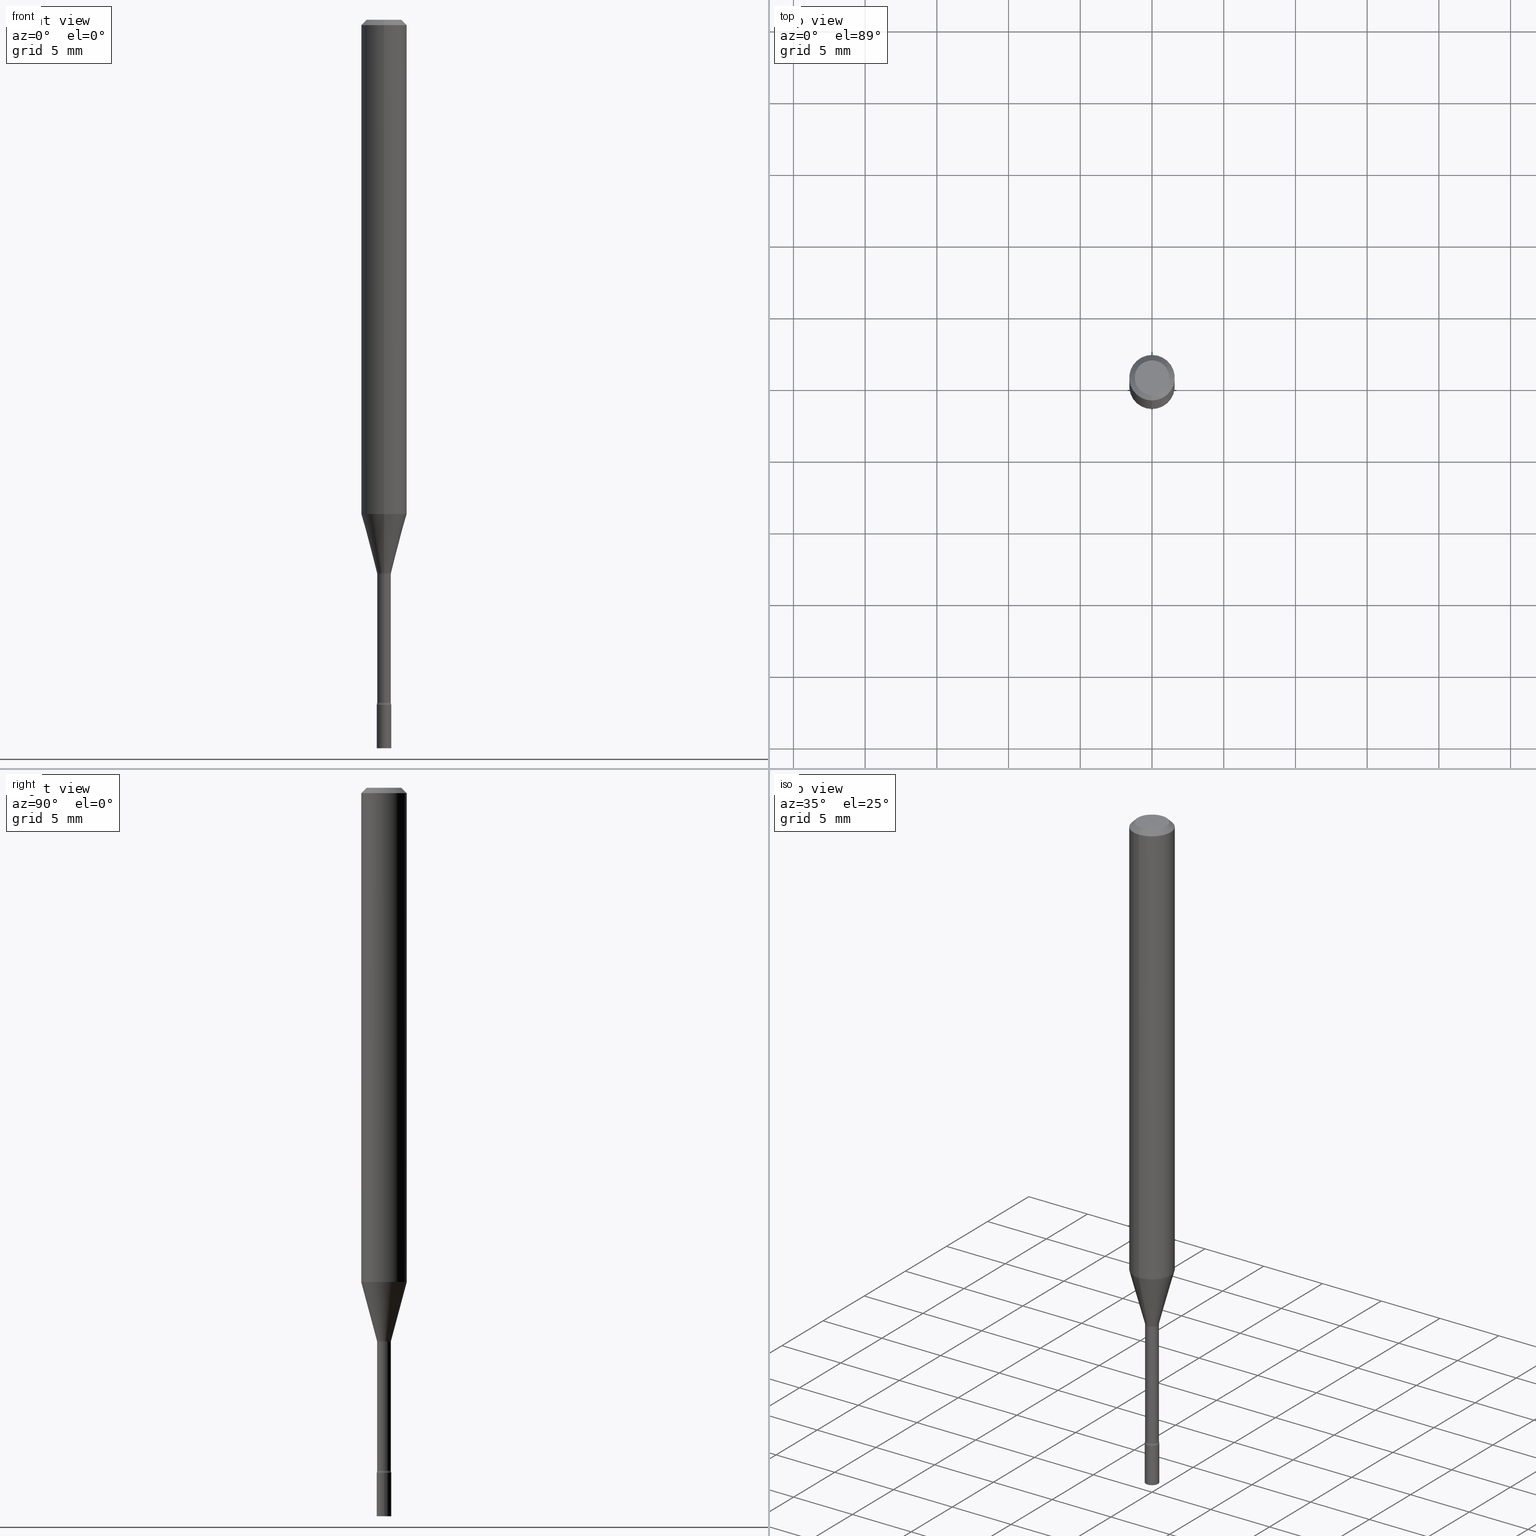
[diagram: canonical four-view strip — front | top / right | iso, engineering-drawing reading convention]
A machine part, canonical four-view strip (front | top / right | iso — engineering-drawing reading convention). The complete STEP part file that produces these views, byte-faithful:
ISO-10303-21;
HEADER;
FILE_DESCRIPTION (( 'STEP AP203' ),
    '1' );
FILE_NAME ('03434.STEP',
    '2024-03-08T21:21:38',
    ( '' ),
    ( '' ),
    'SwSTEP 2.0',
    'SolidWorks 2023',
    '' );
FILE_SCHEMA (( 'CONFIG_CONTROL_DESIGN' ));
ENDSEC;

DATA;
#1 = FACE_OUTER_BOUND ( 'NONE', #109, .T. ) ;
#2 = DIRECTION ( 'NONE',  ( 1.000000000000000000, -6.982962677686284065E-15, 0.000000000000000000 ) ) ;
#3 = ORIENTED_EDGE ( 'NONE', *, *, #150, .T. ) ;
#4 = CARTESIAN_POINT ( 'NONE',  ( -1.348487785899112650E-16, -0.01931111260566928736, -1.518092501787273063 ) ) ;
#5 = CIRCLE ( 'NONE', #206, 0.02000000000000000042 ) ;
#6 = ORIENTED_EDGE ( 'NONE', *, *, #210, .T. ) ;
#7 = AXIS2_PLACEMENT_3D ( 'NONE', #130, #453, #504 ) ;
#8 = EDGE_CURVE ( 'NONE', #244, #404, #360, .T. ) ;
#9 = CARTESIAN_POINT ( 'NONE',  ( 4.890937612370273194E-29, -6.982962677686291165E-15, -2.000000000000000000 ) ) ;
#10 = DIRECTION ( 'NONE',  ( 1.000000000000000000, -6.982962677686265922E-15, 4.876176775795935793E-29 ) ) ;
#11 = PERSON_AND_ORGANIZATION ( #165, #461 ) ;
#12 = CARTESIAN_POINT ( 'NONE',  ( 3.316907271900976096E-16, 0.04749999999999999362, -1.803014101044093239E-16 ) ) ;
#13 = LOCAL_TIME ( 16, 21, 38.00000000000000000, #344 ) ;
#14 = CLOSED_SHELL ( 'NONE', ( #73, #433, #367, #332, #350, #88, #279, #465, #302, #191, #268, #354, #55, #96 ) ) ;
#15 = CIRCLE ( 'NONE', #299, 0.02000000000000000042 ) ;
#16 = CARTESIAN_POINT ( 'NONE',  ( 4.583104993811144410E-29, -6.543459282481236710E-15, -1.874121224617320225 ) ) ;
#17 = PRODUCT_DEFINITION ( 'UNKNOWN', '', #418, #23 ) ;
#18 = APPROVAL_ROLE ( '' ) ;
#19 = DIRECTION ( 'NONE',  ( 1.000000000000000000, -6.982962677686265922E-15, 4.876176775795935793E-29 ) ) ;
#20 = ORIENTED_EDGE ( 'NONE', *, *, #113, .F. ) ;
#21 =( NAMED_UNIT ( * ) PLANE_ANGLE_UNIT ( ) SI_UNIT ( $, .RADIAN. ) );
#22 = DIRECTION ( 'NONE',  ( -6.982962677686265922E-15, -1.000000000000000000, 3.491443067071583478E-15 ) ) ;
#23 = DESIGN_CONTEXT ( 'detailed design', #355, 'design' ) ;
#24 = CYLINDRICAL_SURFACE ( 'NONE', #506, 0.02000000000000000042 ) ;
#25 = ADVANCED_FACE ( 'NONE', ( #463 ), #24, .T. ) ;
#26 = VECTOR ( 'NONE', #489, 39.37007874015748143 ) ;
#27 = CIRCLE ( 'NONE', #381, 0.02000000000000000042 ) ;
#28 = ORIENTED_EDGE ( 'NONE', *, *, #459, .T. ) ;
#29 = ORIENTED_EDGE ( 'NONE', *, *, #63, .T. ) ;
#30 = ORIENTED_EDGE ( 'NONE', *, *, #63, .F. ) ;
#31 = FACE_OUTER_BOUND ( 'NONE', #235, .T. ) ;
#32 = EDGE_LOOP ( 'NONE', ( #406, #202, #127, #42 ) ) ;
#33 = CC_DESIGN_PERSON_AND_ORGANIZATION_ASSIGNMENT ( #424, #434, ( #49 ) ) ;
#34 = ORIENTED_EDGE ( 'NONE', *, *, #472, .T. ) ;
#35 = AXIS2_PLACEMENT_3D ( 'NONE', #414, #499, #452 ) ;
#36 = AXIS2_PLACEMENT_3D ( 'NONE', #93, #227, #19 ) ;
#37 = PERSON_AND_ORGANIZATION_ROLE ( 'design_supplier' ) ;
#38 = ADVANCED_FACE ( 'NONE', ( #290 ), #44, .T. ) ;
#39 = EDGE_LOOP ( 'NONE', ( #125, #107, #265, #30 ) ) ;
#40 = CARTESIAN_POINT ( 'NONE',  ( 3.840629472727447874E-16, 0.04749999999999999362, -1.947592745229184119E-16 ) ) ;
#41 = EDGE_CURVE ( 'NONE', #435, #140, #207, .T. ) ;
#42 = ORIENTED_EDGE ( 'NONE', *, *, #285, .F. ) ;
#43 = FACE_OUTER_BOUND ( 'NONE', #309, .T. ) ;
#44 = PLANE ( 'NONE',  #399 ) ;
#45 = ORIENTED_EDGE ( 'NONE', *, *, #8, .F. ) ;
#46 = CARTESIAN_POINT ( 'NONE',  ( 4.440892098500625669E-16, 0.06250000000000000000, -2.182151916919739674E-16 ) ) ;
#47 = CARTESIAN_POINT ( 'NONE',  ( 4.583104993811144410E-29, -6.543459282481236710E-15, -1.874121224617320225 ) ) ;
#48 = VECTOR ( 'NONE', #334, 39.37007874015748143 ) ;
#49 = SECURITY_CLASSIFICATION ( '', '', #394 ) ;
#50 = DIRECTION ( 'NONE',  ( 0.000000000000000000, 0.000000000000000000, 1.000000000000000000 ) ) ;
#51 = DIRECTION ( 'NONE',  ( -2.445495531220379276E-29, 3.491443067071583478E-15, 1.000000000000000000 ) ) ;
#52 = DIRECTION ( 'NONE',  ( 1.000000000000000000, -6.982962677686284065E-15, 0.000000000000000000 ) ) ;
#53 = DIRECTION ( 'NONE',  ( 1.000000000000000000, 0.000000000000000000, 0.000000000000000000 ) ) ;
#54 = CARTESIAN_POINT ( 'NONE',  ( -4.287811248607203282E-16, -0.06250000000000005551, -0.01499999999999981209 ) ) ;
#55 = ADVANCED_FACE ( 'NONE', ( #443 ), #212, .T. ) ;
#56 = DIRECTION ( 'NONE',  ( 6.982962677686265922E-15, 1.000000000000000000, -3.491443067071583478E-15 ) ) ;
#57 = TOROIDAL_SURFACE ( 'NONE', #371, 0.03379999999999999671, 0.01500000000000001853 ) ;
#58 = CONICAL_SURFACE ( 'NONE', #84, 0.06250000000000000000, 0.7853981633974483900 ) ;
#59 = DIRECTION ( 'NONE',  ( -6.982962677686265922E-15, -1.000000000000000000, 3.491443067071583478E-15 ) ) ;
#60 = VERTEX_POINT ( 'NONE', #245 ) ;
#61 = CARTESIAN_POINT ( 'NONE',  ( -0.02000000000000000042, -6.631365250203681896E-15, -2.000000000000000000 ) ) ;
#62 = FACE_OUTER_BOUND ( 'NONE', #32, .T. ) ;
#63 = EDGE_CURVE ( 'NONE', #244, #386, #90, .T. ) ;
#64 = ORIENTED_EDGE ( 'NONE', *, *, #437, .F. ) ;
#65 = ORIENTED_EDGE ( 'NONE', *, *, #396, .T. ) ;
#66 = AXIS2_PLACEMENT_3D ( 'NONE', #449, #515, #10 ) ;
#67 = EDGE_LOOP ( 'NONE', ( #292, #64 ) ) ;
#68 = SHAPE_DEFINITION_REPRESENTATION ( #271, #228 ) ;
#69 = PRODUCT_RELATED_PRODUCT_CATEGORY ( 'detail', '', ( #335 ) ) ;
#70 = APPROVAL_STATUS ( 'not_yet_approved' ) ;
#71 = DIRECTION ( 'NONE',  ( -2.445495531220379276E-29, 3.491443067071583478E-15, 1.000000000000000000 ) ) ;
#72 = ORIENTED_EDGE ( 'NONE', *, *, #201, .T. ) ;
#73 = ADVANCED_FACE ( 'NONE', ( #364 ), #94, .F. ) ;
#74 = DATE_AND_TIME ( #270, #13 ) ;
#75 = UNCERTAINTY_MEASURE_WITH_UNIT (LENGTH_MEASURE( 1.000000000000000082E-05 ), #416, 'distance_accuracy_value', 'NONE');
#76 = ORIENTED_EDGE ( 'NONE', *, *, #258, .F. ) ;
#77 = EDGE_CURVE ( 'NONE', #440, #177, #5, .T. ) ;
#78 = DIRECTION ( 'NONE',  ( -2.445495531220379276E-29, 3.491443067071583478E-15, 1.000000000000000000 ) ) ;
#79 = AXIS2_PLACEMENT_3D ( 'NONE', #47, #128, #280 ) ;
#80 = DIRECTION ( 'NONE',  ( -2.445468806185136597E-29, 3.491481338843145583E-15, 1.000000000000000000 ) ) ;
#81 = DIRECTION ( 'NONE',  ( 1.839019923739597160E-15, 0.2588190451025245142, 0.9659258262890673130 ) ) ;
#82 = AXIS2_PLACEMENT_3D ( 'NONE', #491, #51, #366 ) ;
#84 = AXIS2_PLACEMENT_3D ( 'NONE', #242, #483, #87 ) ;
#83 = DIRECTION ( 'NONE',  ( -2.445495531220379276E-29, 3.491443067071583478E-15, 1.000000000000000000 ) ) ;
#85 = DIRECTION ( 'NONE',  ( -6.982962677686267499E-15, -1.000000000000000000, 0.000000000000000000 ) ) ;
#86 = CARTESIAN_POINT ( 'NONE',  ( 7.071328565290826587E-46, -1.009576209773290843E-31, -2.891572883701820681E-17 ) ) ;
#87 = DIRECTION ( 'NONE',  ( 6.982962677686265922E-15, 1.000000000000000000, -3.483106191921935554E-15 ) ) ;
#88 = ADVANCED_FACE ( 'NONE', ( #205 ), #308, .T. ) ;
#89 = CARTESIAN_POINT ( 'NONE',  ( 4.364351673553919652E-16, 0.06249999999999995143, -0.01500000000000024751 ) ) ;
#90 = LINE ( 'NONE', #4, #26 ) ;
#91 =( LENGTH_UNIT ( ) NAMED_UNIT ( * ) SI_UNIT ( $, .METRE. ) );
#92 = CARTESIAN_POINT ( 'NONE',  ( 1.396592535537712903E-16, 0.01999999999999343622, -1.879999999999999893 ) ) ;
#93 = CARTESIAN_POINT ( 'NONE',  ( 0.000000000000000000, 0.000000000000000000, 0.000000000000000000 ) ) ;
#94 = TOROIDAL_SURFACE ( 'NONE', #168, 0.03379999999999999671, 0.01500000000000001853 ) ;
#95 = AXIS2_PLACEMENT_3D ( 'NONE', #293, #337, #59 ) ;
#96 = ADVANCED_FACE ( 'NONE', ( #368 ), #57, .F. ) ;
#97 = CARTESIAN_POINT ( 'NONE',  ( 1.335820343229447174E-16, 0.01879999999999468555, -1.521974787463810985 ) ) ;
#98 = ORIENTED_EDGE ( 'NONE', *, *, #223, .F. ) ;
#99 = ORIENTED_EDGE ( 'NONE', *, *, #488, .T. ) ;
#100 = DATE_AND_TIME ( #419, #352 ) ;
#101 = ORIENTED_EDGE ( 'NONE', *, *, #113, .T. ) ;
#102 = EDGE_LOOP ( 'NONE', ( #281, #204 ) ) ;
#103 = CALENDAR_DATE ( 2024, 8, 3 ) ;
#104 = DIRECTION ( 'NONE',  ( 7.105427357601000281E-15, 1.000000000000000000, 0.000000000000000000 ) ) ;
#105 = AXIS2_PLACEMENT_3D ( 'NONE', #505, #348, #135 ) ;
#106 = APPROVAL_ROLE ( '' ) ;
#107 = ORIENTED_EDGE ( 'NONE', *, *, #223, .T. ) ;
#108 = EDGE_CURVE ( 'NONE', #440, #140, #169, .T. ) ;
#109 = EDGE_LOOP ( 'NONE', ( #193, #187, #423, #119 ) ) ;
#110 = AXIS2_PLACEMENT_3D ( 'NONE', #446, #247, #213 ) ;
#111 = CIRCLE ( 'NONE', #289, 0.06250000000000000000 ) ;
#112 = DIRECTION ( 'NONE',  ( -6.982962677686266711E-15, -1.000000000000000000, 0.000000000000000000 ) ) ;
#113 = EDGE_CURVE ( 'NONE', #346, #356, #517, .T. ) ;
#114 = ORIENTED_EDGE ( 'NONE', *, *, #311, .T. ) ;
#115 = ORIENTED_EDGE ( 'NONE', *, *, #234, .T. ) ;
#116 = DIRECTION ( 'NONE',  ( -6.982962677686265922E-15, -1.000000000000000000, 3.483106191921935554E-15 ) ) ;
#117 = CIRCLE ( 'NONE', #189, 0.01500000000000001853 ) ;
#118 = CC_DESIGN_APPROVAL ( #442, ( #17 ) ) ;
#119 = ORIENTED_EDGE ( 'NONE', *, *, #396, .F. ) ;
#120 = CARTESIAN_POINT ( 'NONE',  ( 3.721941866543002798E-29, -5.313946568619659199E-15, -1.521974787463810985 ) ) ;
#121 = PLANE ( 'NONE',  #66 ) ;
#122 = APPLICATION_CONTEXT ( 'configuration controlled 3d designs of mechanical parts and assemblies' ) ;
#123 = CARTESIAN_POINT ( 'NONE',  ( 1.372137078140355306E-16, 0.01931111260565868473, -1.518092501787273063 ) ) ;
#124 = CARTESIAN_POINT ( 'NONE',  ( -4.364351673553585373E-16, -0.06250000000000476008, -1.356909379709239971 ) ) ;
#125 = ORIENTED_EDGE ( 'NONE', *, *, #8, .T. ) ;
#126 = CARTESIAN_POINT ( 'NONE',  ( 0.02000000000000000042, -1.396592535537253145E-16, 9.752353551591871936E-31 ) ) ;
#127 = ORIENTED_EDGE ( 'NONE', *, *, #144, .T. ) ;
#128 = DIRECTION ( 'NONE',  ( -2.445495531220379276E-29, 3.491443067071583478E-15, 1.000000000000000000 ) ) ;
#129 = CC_DESIGN_PERSON_AND_ORGANIZATION_ASSIGNMENT ( #11, #457, ( #335 ) ) ;
#131 = CIRCLE ( 'NONE', #7, 0.01880000000000001809 ) ;
#130 = CARTESIAN_POINT ( 'NONE',  ( 4.583155079766921623E-29, -6.543387556541848814E-15, -1.874121224617320225 ) ) ;
#132 = CARTESIAN_POINT ( 'NONE',  ( 1.335820343228988648E-16, 0.01880000000000000768, -6.563912966094579717E-17 ) ) ;
#133 = FACE_OUTER_BOUND ( 'NONE', #154, .T. ) ;
#134 = MECHANICAL_CONTEXT ( 'NONE', #122, 'mechanical' ) ;
#135 = DIRECTION ( 'NONE',  ( -6.982962677686265922E-15, -1.000000000000000000, 0.000000000000000000 ) ) ;
#136 = ORIENTED_EDGE ( 'NONE', *, *, #389, .T. ) ;
#137 = LINE ( 'NONE', #456, #410 ) ;
#138 = CC_DESIGN_APPROVAL ( #155, ( #418 ) ) ;
#139 = DATE_AND_TIME ( #103, #159 ) ;
#140 = VERTEX_POINT ( 'NONE', #476 ) ;
#141 = CALENDAR_DATE ( 2024, 8, 3 ) ;
#142 = ORIENTED_EDGE ( 'NONE', *, *, #311, .F. ) ;
#143 = CARTESIAN_POINT ( 'NONE',  ( -4.364351673553912750E-16, -0.06250000000000005551, -0.01499999999999981209 ) ) ;
#144 = EDGE_CURVE ( 'NONE', #386, #429, #402, .T. ) ;
#145 = AXIS2_PLACEMENT_3D ( 'NONE', #183, #237, #353 ) ;
#146 = AXIS2_PLACEMENT_3D ( 'NONE', #408, #462, #500 ) ;
#147 = CARTESIAN_POINT ( 'NONE',  ( -2.360241385057502060E-16, -0.03380000000000657479, -1.874121224617320225 ) ) ;
#148 = PERSON_AND_ORGANIZATION_ROLE ( 'creator' ) ;
#149 = CC_DESIGN_DATE_AND_TIME_ASSIGNMENT ( #307, #184, ( #49 ) ) ;
#150 = EDGE_CURVE ( 'NONE', #195, #351, #232, .T. ) ;
#151 = CC_DESIGN_SECURITY_CLASSIFICATION ( #49, ( #418 ) ) ;
#152 = DIRECTION ( 'NONE',  ( -6.982962677686265922E-15, -1.000000000000000000, 3.491443067071583478E-15 ) ) ;
#153 = CLOSED_SHELL ( 'NONE', ( #25, #447, #520, #38 ) ) ;
#154 = EDGE_LOOP ( 'NONE', ( #101, #99 ) ) ;
#155 = APPROVAL ( #70, 'UNSPECIFIED' ) ;
#156 = EDGE_LOOP ( 'NONE', ( #323, #28, #136, #185 ) ) ;
#157 = CARTESIAN_POINT ( 'NONE',  ( 4.597531598694312647E-29, -6.563912966094576118E-15, -1.879999999999999893 ) ) ;
#158 = VECTOR ( 'NONE', #430, 39.37007874015748143 ) ;
#159 = LOCAL_TIME ( 16, 21, 38.00000000000000000, #267 ) ;
#160 = ORIENTED_EDGE ( 'NONE', *, *, #488, .F. ) ;
#161 = PLANE ( 'NONE',  #179 ) ;
#162 = FACE_OUTER_BOUND ( 'NONE', #188, .T. ) ;
#163 = DIRECTION ( 'NONE',  ( -2.445495531220379276E-29, 3.491443067071583478E-15, 1.000000000000000000 ) ) ;
#164 = EDGE_CURVE ( 'NONE', #140, #435, #283, .T. ) ;
#165 = PERSON ( 'UNSPECIFIED', 'UNSPECIFIED', 'UNSPECIFIED', ('UNSPECIFIED'), ('UNSPECIFIED'), ('UNSPECIFIED') ) ;
#166 = APPLICATION_PROTOCOL_DEFINITION ( 'international standard', 'config_control_design', 1994, #355 ) ;
#167 = CARTESIAN_POINT ( 'NONE',  ( -1.348487785899112650E-16, -0.01931111260566928736, -1.518092501787273063 ) ) ;
#168 = AXIS2_PLACEMENT_3D ( 'NONE', #253, #163, #405 ) ;
#169 = LINE ( 'NONE', #209, #158 ) ;
#170 = AXIS2_PLACEMENT_3D ( 'NONE', #466, #71, #475 ) ;
#171 = FACE_OUTER_BOUND ( 'NONE', #67, .T. ) ;
#172 = ORIENTED_EDGE ( 'NONE', *, *, #509, .T. ) ;
#173 = DIRECTION ( 'NONE',  ( -6.982962677686266711E-15, -1.000000000000000000, 3.491443067071583872E-15 ) ) ;
#174 = CARTESIAN_POINT ( 'NONE',  ( 1.378452907375054653E-16, 0.01879999999999347471, -1.874121224617320225 ) ) ;
#175 = LENGTH_MEASURE_WITH_UNIT ( LENGTH_MEASURE( 0.02539999999999999897 ), #91 );
#176 = EDGE_LOOP ( 'NONE', ( #286, #230 ) ) ;
#177 = VERTEX_POINT ( 'NONE', #192 ) ;
#178 = APPROVAL_STATUS ( 'not_yet_approved' ) ;
#179 = AXIS2_PLACEMENT_3D ( 'NONE', #12, #502, #56 ) ;
#180 = CARTESIAN_POINT ( 'NONE',  ( 0.000000000000000000, 0.000000000000000000, 0.000000000000000000 ) ) ;
#181 = EDGE_CURVE ( 'NONE', #429, #495, #314, .T. ) ;
#182 = DIRECTION ( 'NONE',  ( -6.982962677686265922E-15, -1.000000000000000000, 0.000000000000000000 ) ) ;
#183 = CARTESIAN_POINT ( 'NONE',  ( 7.071328565290826587E-46, -1.009576209773290843E-31, -2.891572883701820681E-17 ) ) ;
#184 = DATE_TIME_ROLE ( 'classification_date' ) ;
#185 = ORIENTED_EDGE ( 'NONE', *, *, #201, .F. ) ;
#186 = CC_DESIGN_PERSON_AND_ORGANIZATION_ASSIGNMENT ( #436, #37, ( #418 ) ) ;
#187 = ORIENTED_EDGE ( 'NONE', *, *, #403, .T. ) ;
#188 = EDGE_LOOP ( 'NONE', ( #426, #6, #266, #508 ) ) ;
#189 = AXIS2_PLACEMENT_3D ( 'NONE', #363, #221, #85 ) ;
#190 = AXIS2_PLACEMENT_3D ( 'NONE', #417, #420, #338 ) ;
#191 = ADVANCED_FACE ( 'NONE', ( #133 ), #161, .F. ) ;
#192 = CARTESIAN_POINT ( 'NONE',  ( 0.02000000000000000042, -7.122621931240016973E-15, -2.000000000000000000 ) ) ;
#193 = ORIENTED_EDGE ( 'NONE', *, *, #150, .F. ) ;
#194 = CARTESIAN_POINT ( 'NONE',  ( 0.000000000000000000, 0.000000000000000000, 0.000000000000000000 ) ) ;
#195 = VERTEX_POINT ( 'NONE', #174 ) ;
#196 = FACE_OUTER_BOUND ( 'NONE', #263, .T. ) ;
#197 = AXIS2_PLACEMENT_3D ( 'NONE', #9, #326, #370 ) ;
#198 = AXIS2_PLACEMENT_3D ( 'NONE', #86, #83, #173 ) ;
#199 = DIRECTION ( 'NONE',  ( -6.982962677686265922E-15, -1.000000000000000000, 0.000000000000000000 ) ) ;
#200 = CYLINDRICAL_SURFACE ( 'NONE', #310, 0.06250000000000000000 ) ;
#201 = EDGE_CURVE ( 'NONE', #244, #60, #117, .T. ) ;
#202 = ORIENTED_EDGE ( 'NONE', *, *, #248, .T. ) ;
#203 = DIRECTION ( 'NONE',  ( -2.445495531220379276E-29, 3.491443067071583478E-15, 1.000000000000000000 ) ) ;
#204 = ORIENTED_EDGE ( 'NONE', *, *, #164, .T. ) ;
#205 = FACE_OUTER_BOUND ( 'NONE', #39, .T. ) ;
#206 = AXIS2_PLACEMENT_3D ( 'NONE', #287, #80, #52 ) ;
#207 = CIRCLE ( 'NONE', #341, 0.02000000000000000042 ) ;
#208 = VECTOR ( 'NONE', #479, 39.37007874015748143 ) ;
#209 = CARTESIAN_POINT ( 'NONE',  ( -0.02000000000000000042, 1.421085471520200401E-16, -9.837870180509812545E-31 ) ) ;
#210 = EDGE_CURVE ( 'NONE', #401, #495, #407, .T. ) ;
#211 = CARTESIAN_POINT ( 'NONE',  ( 1.421085471520660899E-16, 0.01999999999999345357, -1.879999999999999893 ) ) ;
#212 = CYLINDRICAL_SURFACE ( 'NONE', #35, 0.01880000000000000768 ) ;
#213 = DIRECTION ( 'NONE',  ( -6.982962677686265922E-15, -1.000000000000000000, 3.483106191921935554E-15 ) ) ;
#214 = CARTESIAN_POINT ( 'NONE',  ( 3.712488429099941897E-29, -5.300333540538529346E-15, -1.518092501787273063 ) ) ;
#215 = PERSON_AND_ORGANIZATION ( #165, #461 ) ;
#216 = DIMENSIONAL_EXPONENTS ( 1.000000000000000000, 0.000000000000000000, 0.000000000000000000, 0.000000000000000000, 0.000000000000000000, 0.000000000000000000, 0.000000000000000000 ) ;
#217 = AXIS2_PLACEMENT_3D ( 'NONE', #478, #78, #199 ) ;
#219 = AXIS2_PLACEMENT_3D ( 'NONE', #16, #222, #378 ) ;
#218 = APPROVAL_STATUS ( 'not_yet_approved' ) ;
#220 = ORIENTED_EDGE ( 'NONE', *, *, #316, .T. ) ;
#221 = DIRECTION ( 'NONE',  ( -1.000000000000000000, 6.982962677686265922E-15, -4.883557194083112340E-29 ) ) ;
#222 = DIRECTION ( 'NONE',  ( -2.445495531220379276E-29, 3.491443067071583478E-15, 1.000000000000000000 ) ) ;
#223 = EDGE_CURVE ( 'NONE', #404, #401, #324, .T. ) ;
#224 = FACE_OUTER_BOUND ( 'NONE', #400, .T. ) ;
#225 = ORIENTED_EDGE ( 'NONE', *, *, #503, .F. ) ;
#226 = VERTEX_POINT ( 'NONE', #211 ) ;
#227 = DIRECTION ( 'NONE',  ( -2.445468806185136597E-29, 3.491481338843145583E-15, 1.000000000000000000 ) ) ;
#228 = ADVANCED_BREP_SHAPE_REPRESENTATION ( '03434', ( #458, #300, #498 ), #428 ) ;
#229 = ORIENTED_EDGE ( 'NONE', *, *, #248, .F. ) ;
#230 = ORIENTED_EDGE ( 'NONE', *, *, #77, .F. ) ;
#231 = PERSON_AND_ORGANIZATION ( #165, #461 ) ;
#232 = CIRCLE ( 'NONE', #217, 0.01880000000000001809 ) ;
#233 = TOROIDAL_SURFACE ( 'NONE', #219, 0.03380000000000003141, 0.01500000000000001679 ) ;
#234 = EDGE_CURVE ( 'NONE', #177, #440, #484, .T. ) ;
#235 = EDGE_LOOP ( 'NONE', ( #471, #382, #142, #374 ) ) ;
#236 = APPROVAL_ROLE ( '' ) ;
#237 = DIRECTION ( 'NONE',  ( -2.445495531220379276E-29, 3.491443067071583478E-15, 1.000000000000000000 ) ) ;
#238 = CALENDAR_DATE ( 2024, 8, 3 ) ;
#239 = CARTESIAN_POINT ( 'NONE',  ( -1.312796983404560969E-16, -0.01880000000000656146, -1.874121224617320225 ) ) ;
#240 = EDGE_CURVE ( 'NONE', #404, #244, #427, .T. ) ;
#241 = APPROVAL_PERSON_ORGANIZATION ( #215, #442, #18 ) ;
#242 = CARTESIAN_POINT ( 'NONE',  ( 3.668243296830576009E-31, -5.237164600607386088E-17, -0.01500000000000003067 ) ) ;
#243 = ORIENTED_EDGE ( 'NONE', *, *, #240, .T. ) ;
#244 = VERTEX_POINT ( 'NONE', #167 ) ;
#245 = CARTESIAN_POINT ( 'NONE',  ( -1.312796983404645772E-16, -0.01880000000000531246, -1.521974787463810985 ) ) ;
#246 = ORIENTED_EDGE ( 'NONE', *, *, #108, .T. ) ;
#247 = DIRECTION ( 'NONE',  ( -2.445495531220379276E-29, 3.491443067071583478E-15, 1.000000000000000000 ) ) ;
#248 = EDGE_CURVE ( 'NONE', #401, #386, #497, .T. ) ;
#249 = VECTOR ( 'NONE', #81, 39.37007874015748143 ) ;
#250 = CIRCLE ( 'NONE', #146, 0.01500000000000001853 ) ;
#251 = CYLINDRICAL_SURFACE ( 'NONE', #36, 0.02000000000000000042 ) ;
#252 = CARTESIAN_POINT ( 'NONE',  ( 3.318315824349964165E-29, -4.737571846430229129E-15, -1.356909379709240193 ) ) ;
#253 = CARTESIAN_POINT ( 'NONE',  ( 3.721941866543002798E-29, -5.313946568619659199E-15, -1.521974787463810985 ) ) ;
#254 = CARTESIAN_POINT ( 'NONE',  ( 3.721982541372836389E-29, -5.313888319948269223E-15, -1.521974787463810985 ) ) ;
#255 = DIRECTION ( 'NONE',  ( 4.937700262164548042E-15, 0.7071067811865451302, -0.7071067811865499042 ) ) ;
#256 = CC_DESIGN_DATE_AND_TIME_ASSIGNMENT ( #312, #305, ( #17 ) ) ;
#257 = CARTESIAN_POINT ( 'NONE',  ( 2.401634446869598892E-16, 0.03379999999999348803, -1.874121224617320225 ) ) ;
#258 = EDGE_CURVE ( 'NONE', #346, #495, #454, .T. ) ;
#259 = VECTOR ( 'NONE', #255, 39.37007874015748143 ) ;
#261 = CIRCLE ( 'NONE', #198, 0.04749999999999999362 ) ;
#260 = CARTESIAN_POINT ( 'NONE',  ( 4.440892098500960442E-16, 0.06249999999999995837, -0.01500000000000024751 ) ) ;
#262 = CARTESIAN_POINT ( 'NONE',  ( 3.668243296830576009E-31, -5.237164600607386088E-17, -0.01500000000000003067 ) ) ;
#263 = EDGE_LOOP ( 'NONE', ( #397, #343, #65, #220 ) ) ;
#264 = EDGE_LOOP ( 'NONE', ( #160, #480, #387, #76 ) ) ;
#265 = ORIENTED_EDGE ( 'NONE', *, *, #376, .F. ) ;
#266 = ORIENTED_EDGE ( 'NONE', *, *, #181, .F. ) ;
#267 = COORDINATED_UNIVERSAL_TIME_OFFSET ( 5, 0, .BEHIND. ) ;
#268 = ADVANCED_FACE ( 'NONE', ( #171 ), #294, .F. ) ;
#269 = DIRECTION ( 'NONE',  ( 1.000000000000000000, -6.982962677686265922E-15, 4.876176775795935793E-29 ) ) ;
#270 = CALENDAR_DATE ( 2024, 8, 3 ) ;
#271 = PRODUCT_DEFINITION_SHAPE ( 'NONE', 'NONE',  #17 ) ;
#272 = VERTEX_POINT ( 'NONE', #432 ) ;
#273 = APPROVAL_DATE_TIME ( #139, #155 ) ;
#274 = EDGE_LOOP ( 'NONE', ( #98, #243, #29, #229 ) ) ;
#275 = AXIS2_PLACEMENT_3D ( 'NONE', #482, #282, #393 ) ;
#276 = AXIS2_PLACEMENT_3D ( 'NONE', #254, #445, #486 ) ;
#277 = DIRECTION ( 'NONE',  ( -2.445495531220379276E-29, 3.491443067071583478E-15, 1.000000000000000000 ) ) ;
#278 = CONICAL_SURFACE ( 'NONE', #190, 0.06250000000000000000, 0.7853981633974483900 ) ;
#279 = ADVANCED_FACE ( 'NONE', ( #385 ), #342, .T. ) ;
#280 = DIRECTION ( 'NONE',  ( -6.982962677686265922E-15, -1.000000000000000000, 3.491443067071583478E-15 ) ) ;
#281 = ORIENTED_EDGE ( 'NONE', *, *, #41, .T. ) ;
#282 = DIRECTION ( 'NONE',  ( -2.445468806185136597E-29, 3.491481338843145583E-15, 1.000000000000000000 ) ) ;
#283 = CIRCLE ( 'NONE', #275, 0.02000000000000000042 ) ;
#284 = DIRECTION ( 'NONE',  ( 2.438088387897960049E-29, -3.491481338843145188E-15, -1.000000000000000000 ) ) ;
#285 = EDGE_CURVE ( 'NONE', #495, #429, #391, .T. ) ;
#286 = ORIENTED_EDGE ( 'NONE', *, *, #234, .F. ) ;
#287 = CARTESIAN_POINT ( 'NONE',  ( 4.890937612370273194E-29, -6.982962677686291165E-15, -2.000000000000000000 ) ) ;
#288 = CARTESIAN_POINT ( 'NONE',  ( 0.000000000000000000, 0.000000000000000000, 0.000000000000000000 ) ) ;
#289 = AXIS2_PLACEMENT_3D ( 'NONE', #252, #203, #321 ) ;
#290 = FACE_OUTER_BOUND ( 'NONE', #176, .T. ) ;
#291 = DIRECTION ( 'NONE',  ( -6.982962677686265922E-15, -1.000000000000000000, 4.370956789862821150E-15 ) ) ;
#292 = ORIENTED_EDGE ( 'NONE', *, *, #316, .F. ) ;
#293 = CARTESIAN_POINT ( 'NONE',  ( 0.000000000000000000, 0.000000000000000000, 0.000000000000000000 ) ) ;
#294 = PLANE ( 'NONE',  #298 ) ;
#295 = DIRECTION ( 'NONE',  ( -2.445495531220379276E-29, 3.491443067071583478E-15, 1.000000000000000000 ) ) ;
#296 = DIRECTION ( 'NONE',  ( -2.445495531220379276E-29, 3.491443067071583478E-15, 1.000000000000000000 ) ) ;
#297 = ORIENTED_EDGE ( 'NONE', *, *, #108, .F. ) ;
#298 = AXIS2_PLACEMENT_3D ( 'NONE', #92, #306, #22 ) ;
#299 = AXIS2_PLACEMENT_3D ( 'NONE', #157, #328, #359 ) ;
#300 = MANIFOLD_SOLID_BREP ( 'Body-Move/Copy2[2]', #14 ) ;
#301 = DIRECTION ( 'NONE',  ( -6.982962677686265922E-15, -1.000000000000000000, 0.000000000000000000 ) ) ;
#302 = ADVANCED_FACE ( 'NONE', ( #43 ), #58, .T. ) ;
#303 = EDGE_LOOP ( 'NONE', ( #377, #45, #72, #114 ) ) ;
#304 = CARTESIAN_POINT ( 'NONE',  ( 0.02000000000000000042, -6.703644170578838761E-15, -1.879999999999999893 ) ) ;
#305 = DATE_TIME_ROLE ( 'creation_date' ) ;
#306 = DIRECTION ( 'NONE',  ( -2.445495531220378996E-29, 3.491443067071583478E-15, 1.000000000000000000 ) ) ;
#307 = DATE_AND_TIME ( #238, #439 ) ;
#308 = CONICAL_SURFACE ( 'NONE', #409, 0.01931111260566398605, 0.2617993877991497964 ) ;
#309 = EDGE_LOOP ( 'NONE', ( #470, #20, #425, #421 ) ) ;
#310 = AXIS2_PLACEMENT_3D ( 'NONE', #194, #277, #152 ) ;
#311 = EDGE_CURVE ( 'NONE', #60, #492, #392, .T. ) ;
#312 = DATE_AND_TIME ( #141, #361 ) ;
#313 = DIRECTION ( 'NONE',  ( -1.000000000000000000, 6.982962677686265922E-15, -4.883557194083112340E-29 ) ) ;
#314 = CIRCLE ( 'NONE', #110, 0.06250000000000000000 ) ;
#315 = AXIS2_PLACEMENT_3D ( 'NONE', #262, #296, #116 ) ;
#316 = EDGE_CURVE ( 'NONE', #272, #226, #15, .T. ) ;
#317 = DIRECTION ( 'NONE',  ( -2.445495531220379276E-29, 3.491443067071583478E-15, 1.000000000000000000 ) ) ;
#318 = ORIENTED_EDGE ( 'NONE', *, *, #77, .T. ) ;
#319 = EDGE_LOOP ( 'NONE', ( #225, #3, #172, #477 ) ) ;
#320 = APPROVAL_PERSON_ORGANIZATION ( #469, #155, #106 ) ;
#321 = DIRECTION ( 'NONE',  ( -6.982962677686265922E-15, -1.000000000000000000, 4.370956789862821150E-15 ) ) ;
#322 = DIRECTION ( 'NONE',  ( -2.445495531220379276E-29, 3.491443067071583478E-15, 1.000000000000000000 ) ) ;
#323 = ORIENTED_EDGE ( 'NONE', *, *, #240, .F. ) ;
#324 = LINE ( 'NONE', #123, #249 ) ;
#325 =( NAMED_UNIT ( * ) SI_UNIT ( $, .STERADIAN. ) SOLID_ANGLE_UNIT ( ) );
#326 = DIRECTION ( 'NONE',  ( -2.445468806185136597E-29, 3.491481338843145583E-15, 1.000000000000000000 ) ) ;
#327 = CARTESIAN_POINT ( 'NONE',  ( 1.396592535537742485E-16, 0.01999999999999301642, -2.000000000000000000 ) ) ;
#328 = DIRECTION ( 'NONE',  ( -2.445495531220379276E-29, 3.491443067071583478E-15, 1.000000000000000000 ) ) ;
#329 = CARTESIAN_POINT ( 'NONE',  ( 3.318315824349964165E-29, -4.737571846430229129E-15, -1.356909379709240193 ) ) ;
#330 = CARTESIAN_POINT ( 'NONE',  ( 4.440892098500955511E-16, 0.06249999999999524686, -1.356909379709240415 ) ) ;
#331 = CIRCLE ( 'NONE', #518, 0.01500000000000001506 ) ;
#332 = ADVANCED_FACE ( 'NONE', ( #490 ), #278, .T. ) ;
#333 = DIRECTION ( 'NONE',  ( -2.445468806185136877E-29, 3.491481338843145188E-15, 1.000000000000000000 ) ) ;
#334 = DIRECTION ( 'NONE',  ( -2.445495531220379276E-29, 3.491443067071583478E-15, 1.000000000000000000 ) ) ;
#335 = PRODUCT ( '03434', '03434', '', ( #134 ) ) ;
#336 = FACE_OUTER_BOUND ( 'NONE', #102, .T. ) ;
#337 = DIRECTION ( 'NONE',  ( -2.445495531220379276E-29, 3.491443067071583478E-15, 1.000000000000000000 ) ) ;
#338 = DIRECTION ( 'NONE',  ( 6.982962677686265922E-15, 1.000000000000000000, -3.483106191921935554E-15 ) ) ;
#339 = DIRECTION ( 'NONE',  ( -2.445495531220379276E-29, 3.491443067071583478E-15, 1.000000000000000000 ) ) ;
#340 = EDGE_CURVE ( 'NONE', #356, #429, #422, .T. ) ;
#341 = AXIS2_PLACEMENT_3D ( 'NONE', #415, #362, #2 ) ;
#342 = CONICAL_SURFACE ( 'NONE', #105, 0.01931111260566398605, 0.2617993877991497964 ) ;
#343 = ORIENTED_EDGE ( 'NONE', *, *, #481, .F. ) ;
#344 = COORDINATED_UNIVERSAL_TIME_OFFSET ( 5, 0, .BEHIND. ) ;
#345 = DIRECTION ( 'NONE',  ( -2.445468806185136597E-29, 3.491481338843145583E-15, 1.000000000000000000 ) ) ;
#346 = VERTEX_POINT ( 'NONE', #40 ) ;
#347 = CARTESIAN_POINT ( 'NONE',  ( 4.597531598694312647E-29, -6.563912966094576118E-15, -1.879999999999999893 ) ) ;
#348 = DIRECTION ( 'NONE',  ( -2.445495531220379276E-29, 3.491443067071583478E-15, 1.000000000000000000 ) ) ;
#349 = PERSON_AND_ORGANIZATION ( #165, #461 ) ;
#350 = ADVANCED_FACE ( 'NONE', ( #162 ), #200, .T. ) ;
#351 = VERTEX_POINT ( 'NONE', #239 ) ;
#352 = LOCAL_TIME ( 16, 21, 38.00000000000000000, #369 ) ;
#353 = DIRECTION ( 'NONE',  ( -6.982962677686266711E-15, -1.000000000000000000, 3.491443067071583872E-15 ) ) ;
#354 = ADVANCED_FACE ( 'NONE', ( #196 ), #233, .F. ) ;
#355 = APPLICATION_CONTEXT ( 'configuration controlled 3d designs of mechanical parts and assemblies' ) ;
#356 = VERTEX_POINT ( 'NONE', #467 ) ;
#357 = VECTOR ( 'NONE', #333, 39.37007874015748143 ) ;
#358 = DIRECTION ( 'NONE',  ( -2.445495531220379276E-29, 3.491443067071583478E-15, 1.000000000000000000 ) ) ;
#359 = DIRECTION ( 'NONE',  ( -6.982962677686265922E-15, -1.000000000000000000, 0.000000000000000000 ) ) ;
#360 = CIRCLE ( 'NONE', #512, 0.01931111260566398605 ) ;
#361 = LOCAL_TIME ( 16, 21, 38.00000000000000000, #511 ) ;
#362 = DIRECTION ( 'NONE',  ( -2.445468806185136597E-29, 3.491481338843145583E-15, 1.000000000000000000 ) ) ;
#363 = CARTESIAN_POINT ( 'NONE',  ( -2.360241385057585384E-16, -0.03380000000000531191, -1.521974787463810985 ) ) ;
#364 = FACE_OUTER_BOUND ( 'NONE', #156, .T. ) ;
#365 = APPLICATION_PROTOCOL_DEFINITION ( 'international standard', 'config_control_design', 1994, #122 ) ;
#366 = DIRECTION ( 'NONE',  ( -6.982962677686265922E-15, -1.000000000000000000, 0.000000000000000000 ) ) ;
#367 = ADVANCED_FACE ( 'NONE', ( #1 ), #513, .F. ) ;
#368 = FACE_OUTER_BOUND ( 'NONE', #303, .T. ) ;
#369 = COORDINATED_UNIVERSAL_TIME_OFFSET ( 5, 0, .BEHIND. ) ;
#370 = DIRECTION ( 'NONE',  ( 1.000000000000000000, -6.982962677686284065E-15, 0.000000000000000000 ) ) ;
#371 = AXIS2_PLACEMENT_3D ( 'NONE', #120, #358, #444 ) ;
#372 = AXIS2_PLACEMENT_3D ( 'NONE', #147, #313, #112 ) ;
#373 = DIRECTION ( 'NONE',  ( -2.445495531220379276E-29, 3.491443067071583478E-15, 1.000000000000000000 ) ) ;
#374 = ORIENTED_EDGE ( 'NONE', *, *, #509, .F. ) ;
#375 = CYLINDRICAL_SURFACE ( 'NONE', #95, 0.06250000000000000000 ) ;
#376 = EDGE_CURVE ( 'NONE', #386, #401, #111, .T. ) ;
#377 = ORIENTED_EDGE ( 'NONE', *, *, #459, .F. ) ;
#378 = DIRECTION ( 'NONE',  ( -6.982962677686265922E-15, -1.000000000000000000, 3.491443067071583478E-15 ) ) ;
#379 = APPROVAL_PERSON_ORGANIZATION ( #349, #411, #236 ) ;
#380 = AXIS2_PLACEMENT_3D ( 'NONE', #329, #496, #291 ) ;
#381 = AXIS2_PLACEMENT_3D ( 'NONE', #347, #373, #455 ) ;
#382 = ORIENTED_EDGE ( 'NONE', *, *, #503, .T. ) ;
#383 = CARTESIAN_POINT ( 'NONE',  ( 3.712488429099941897E-29, -5.300333540538529346E-15, -1.518092501787273063 ) ) ;
#384 = CARTESIAN_POINT ( 'NONE',  ( 3.721982541372836389E-29, -5.313888319948269223E-15, -1.521974787463810985 ) ) ;
#385 = FACE_OUTER_BOUND ( 'NONE', #274, .T. ) ;
#386 = VERTEX_POINT ( 'NONE', #124 ) ;
#387 = ORIENTED_EDGE ( 'NONE', *, *, #181, .T. ) ;
#388 = CARTESIAN_POINT ( 'NONE',  ( 2.906514588320657751E-16, 0.01931111260565868473, -1.518092501787273063 ) ) ;
#389 = EDGE_CURVE ( 'NONE', #492, #60, #507, .T. ) ;
#390 = CYLINDRICAL_SURFACE ( 'NONE', #170, 0.01880000000000000768 ) ;
#391 = CIRCLE ( 'NONE', #315, 0.06250000000000000000 ) ;
#392 = CIRCLE ( 'NONE', #276, 0.01879999999999999727 ) ;
#393 = DIRECTION ( 'NONE',  ( 1.000000000000000000, -6.982962677686284065E-15, 0.000000000000000000 ) ) ;
#394 = SECURITY_CLASSIFICATION_LEVEL ( 'unclassified' ) ;
#395 = ORIENTED_EDGE ( 'NONE', *, *, #41, .F. ) ;
#396 = EDGE_CURVE ( 'NONE', #351, #272, #441, .T. ) ;
#397 = ORIENTED_EDGE ( 'NONE', *, *, #403, .F. ) ;
#398 = CARTESIAN_POINT ( 'NONE',  ( -4.364351673553916201E-16, -0.06250000000000000000, 2.182151916919739674E-16 ) ) ;
#399 = AXIS2_PLACEMENT_3D ( 'NONE', #327, #284, #493 ) ;
#400 = EDGE_LOOP ( 'NONE', ( #297, #318, #34, #487 ) ) ;
#401 = VERTEX_POINT ( 'NONE', #330 ) ;
#402 = LINE ( 'NONE', #398, #460 ) ;
#403 = EDGE_CURVE ( 'NONE', #195, #226, #331, .T. ) ;
#404 = VERTEX_POINT ( 'NONE', #388 ) ;
#405 = DIRECTION ( 'NONE',  ( -6.982962677686265922E-15, -1.000000000000000000, 3.491443067071583478E-15 ) ) ;
#406 = ORIENTED_EDGE ( 'NONE', *, *, #210, .F. ) ;
#407 = LINE ( 'NONE', #46, #474 ) ;
#408 = CARTESIAN_POINT ( 'NONE',  ( 2.401634446869510145E-16, 0.03379999999999468152, -1.521974787463810985 ) ) ;
#409 = AXIS2_PLACEMENT_3D ( 'NONE', #214, #322, #485 ) ;
#410 = VECTOR ( 'NONE', #295, 39.37007874015748143 ) ;
#411 = APPROVAL ( #178, 'UNSPECIFIED' ) ;
#412 = CC_DESIGN_PERSON_AND_ORGANIZATION_ASSIGNMENT ( #231, #148, ( #17 ) ) ;
#413 = DIRECTION ( 'NONE',  ( -2.445495531220379276E-29, 3.491443067071583478E-15, 1.000000000000000000 ) ) ;
#414 = CARTESIAN_POINT ( 'NONE',  ( 0.000000000000000000, 0.000000000000000000, 0.000000000000000000 ) ) ;
#415 = CARTESIAN_POINT ( 'NONE',  ( 4.597481355628056331E-29, -6.563984917025112954E-15, -1.879999999999999893 ) ) ;
#416 =( CONVERSION_BASED_UNIT ( 'INCH', #175 ) LENGTH_UNIT ( ) NAMED_UNIT ( #216 ) );
#417 = CARTESIAN_POINT ( 'NONE',  ( 3.668243296830576009E-31, -5.237164600607386088E-17, -0.01500000000000003067 ) ) ;
#418 = PRODUCT_DEFINITION_FORMATION_WITH_SPECIFIED_SOURCE ( 'ANY', '', #335, .NOT_KNOWN. ) ;
#419 = CALENDAR_DATE ( 2024, 8, 3 ) ;
#420 = DIRECTION ( 'NONE',  ( 2.445495531220379276E-29, -3.491443067071583478E-15, -1.000000000000000000 ) ) ;
#421 = ORIENTED_EDGE ( 'NONE', *, *, #285, .T. ) ;
#422 = LINE ( 'NONE', #54, #208 ) ;
#423 = ORIENTED_EDGE ( 'NONE', *, *, #437, .T. ) ;
#424 = PERSON_AND_ORGANIZATION ( #165, #461 ) ;
#425 = ORIENTED_EDGE ( 'NONE', *, *, #258, .T. ) ;
#426 = ORIENTED_EDGE ( 'NONE', *, *, #376, .T. ) ;
#427 = CIRCLE ( 'NONE', #82, 0.01931111260566398605 ) ;
#428 =( GEOMETRIC_REPRESENTATION_CONTEXT ( 3 ) GLOBAL_UNCERTAINTY_ASSIGNED_CONTEXT ( ( #75 ) ) GLOBAL_UNIT_ASSIGNED_CONTEXT ( ( #416, #21, #325 ) ) REPRESENTATION_CONTEXT ( 'NONE', 'WORKASPACE' ) );
#429 = VERTEX_POINT ( 'NONE', #143 ) ;
#430 = DIRECTION ( 'NONE',  ( -2.445468806185136877E-29, 3.491481338843145188E-15, 1.000000000000000000 ) ) ;
#431 = APPROVAL_DATE_TIME ( #100, #442 ) ;
#432 = CARTESIAN_POINT ( 'NONE',  ( -1.396592535536794619E-16, -0.02000000000000658196, -1.879999999999999893 ) ) ;
#433 = ADVANCED_FACE ( 'NONE', ( #31 ), #390, .T. ) ;
#434 = PERSON_AND_ORGANIZATION_ROLE ( 'classification_officer' ) ;
#435 = VERTEX_POINT ( 'NONE', #304 ) ;
#436 = PERSON_AND_ORGANIZATION ( #165, #461 ) ;
#437 = EDGE_CURVE ( 'NONE', #226, #272, #27, .T. ) ;
#438 = PERSON_AND_ORGANIZATION_ROLE ( 'creator' ) ;
#439 = LOCAL_TIME ( 16, 21, 38.00000000000000000, #464 ) ;
#440 = VERTEX_POINT ( 'NONE', #61 ) ;
#441 = CIRCLE ( 'NONE', #372, 0.01500000000000001506 ) ;
#442 = APPROVAL ( #218, 'UNSPECIFIED' ) ;
#443 = FACE_OUTER_BOUND ( 'NONE', #319, .T. ) ;
#444 = DIRECTION ( 'NONE',  ( -6.982962677686265922E-15, -1.000000000000000000, 3.491443067071583478E-15 ) ) ;
#445 = DIRECTION ( 'NONE',  ( -2.445495531220379276E-29, 3.491443067071583478E-15, 1.000000000000000000 ) ) ;
#446 = CARTESIAN_POINT ( 'NONE',  ( 3.668243296830576009E-31, -5.237164600607386088E-17, -0.01500000000000003067 ) ) ;
#447 = ADVANCED_FACE ( 'NONE', ( #336 ), #121, .T. ) ;
#448 = LINE ( 'NONE', #126, #357 ) ;
#449 = CARTESIAN_POINT ( 'NONE',  ( 4.597481355628056331E-29, -6.563984917025112954E-15, -1.879999999999999893 ) ) ;
#450 = CC_DESIGN_APPROVAL ( #411, ( #49 ) ) ;
#451 = AXIS2_PLACEMENT_3D ( 'NONE', #384, #510, #182 ) ;
#452 = DIRECTION ( 'NONE',  ( -6.982962677686265922E-15, -1.000000000000000000, 3.491443067071583478E-15 ) ) ;
#453 = DIRECTION ( 'NONE',  ( -2.445495531220379276E-29, 3.491443067071583478E-15, 1.000000000000000000 ) ) ;
#454 = LINE ( 'NONE', #89, #259 ) ;
#455 = DIRECTION ( 'NONE',  ( -6.982962677686265922E-15, -1.000000000000000000, 0.000000000000000000 ) ) ;
#456 = CARTESIAN_POINT ( 'NONE',  ( -1.312796983405018508E-16, -0.01880000000000000768, 6.563912966094579717E-17 ) ) ;
#457 = PERSON_AND_ORGANIZATION_ROLE ( 'design_owner' ) ;
#458 = MANIFOLD_SOLID_BREP ( 'Body-Move/Copy2[1]', #153 ) ;
#459 = EDGE_CURVE ( 'NONE', #404, #492, #250, .T. ) ;
#460 = VECTOR ( 'NONE', #317, 39.37007874015748143 ) ;
#461 = ORGANIZATION ( 'UNSPECIFIED', 'UNSPECIFIED', '' ) ;
#462 = DIRECTION ( 'NONE',  ( 1.000000000000000000, -7.105427357601001070E-15, 4.926315039848056885E-29 ) ) ;
#463 = FACE_OUTER_BOUND ( 'NONE', #468, .T. ) ;
#464 = COORDINATED_UNIVERSAL_TIME_OFFSET ( 5, 0, .BEHIND. ) ;
#465 = ADVANCED_FACE ( 'NONE', ( #62 ), #375, .T. ) ;
#466 = CARTESIAN_POINT ( 'NONE',  ( 0.000000000000000000, 0.000000000000000000, 0.000000000000000000 ) ) ;
#467 = CARTESIAN_POINT ( 'NONE',  ( -3.773273898774340269E-16, -0.04749999999999999362, 1.369278168488820352E-16 ) ) ;
#468 = EDGE_LOOP ( 'NONE', ( #115, #246, #395, #519 ) ) ;
#469 = PERSON_AND_ORGANIZATION ( #165, #461 ) ;
#470 = ORIENTED_EDGE ( 'NONE', *, *, #340, .F. ) ;
#471 = ORIENTED_EDGE ( 'NONE', *, *, #481, .T. ) ;
#472 = EDGE_CURVE ( 'NONE', #177, #435, #448, .T. ) ;
#473 = PERSON_AND_ORGANIZATION ( #165, #461 ) ;
#474 = VECTOR ( 'NONE', #413, 39.37007874015748143 ) ;
#475 = DIRECTION ( 'NONE',  ( -6.982962677686265922E-15, -1.000000000000000000, 3.491443067071583478E-15 ) ) ;
#476 = CARTESIAN_POINT ( 'NONE',  ( -0.02000000000000000042, -6.631365250203681896E-15, -1.879999999999999893 ) ) ;
#477 = ORIENTED_EDGE ( 'NONE', *, *, #389, .F. ) ;
#478 = CARTESIAN_POINT ( 'NONE',  ( 4.583155079766921623E-29, -6.543387556541848814E-15, -1.874121224617320225 ) ) ;
#479 = DIRECTION ( 'NONE',  ( -4.851104656540964275E-15, -0.7071067811865500152, -0.7071067811865450192 ) ) ;
#480 = ORIENTED_EDGE ( 'NONE', *, *, #340, .T. ) ;
#481 = EDGE_CURVE ( 'NONE', #351, #195, #131, .T. ) ;
#482 = CARTESIAN_POINT ( 'NONE',  ( 4.597481355628056331E-29, -6.563984917025112954E-15, -1.879999999999999893 ) ) ;
#483 = DIRECTION ( 'NONE',  ( 2.445495531220379276E-29, -3.491443067071583478E-15, -1.000000000000000000 ) ) ;
#484 = CIRCLE ( 'NONE', #197, 0.02000000000000000042 ) ;
#485 = DIRECTION ( 'NONE',  ( -6.982962677686265922E-15, -1.000000000000000000, 0.000000000000000000 ) ) ;
#486 = DIRECTION ( 'NONE',  ( -6.982962677686265922E-15, -1.000000000000000000, 0.000000000000000000 ) ) ;
#487 = ORIENTED_EDGE ( 'NONE', *, *, #164, .F. ) ;
#488 = EDGE_CURVE ( 'NONE', #356, #346, #261, .T. ) ;
#489 = DIRECTION ( 'NONE',  ( -1.807323732225326984E-15, -0.2588190451025177419, 0.9659258262890690894 ) ) ;
#490 = FACE_OUTER_BOUND ( 'NONE', #264, .T. ) ;
#491 = CARTESIAN_POINT ( 'NONE',  ( 3.712488429099941897E-29, -5.300333540538529346E-15, -1.518092501787273063 ) ) ;
#492 = VERTEX_POINT ( 'NONE', #97 ) ;
#493 = DIRECTION ( 'NONE',  ( -1.000000000000000000, 6.982962677686265922E-15, -4.876176775795935793E-29 ) ) ;
#494 = LINE ( 'NONE', #132, #48 ) ;
#495 = VERTEX_POINT ( 'NONE', #260 ) ;
#496 = DIRECTION ( 'NONE',  ( -2.445495531220379276E-29, 3.491443067071583478E-15, 1.000000000000000000 ) ) ;
#497 = CIRCLE ( 'NONE', #380, 0.06250000000000000000 ) ;
#498 = AXIS2_PLACEMENT_3D ( 'NONE', #288, #50, #53 ) ;
#499 = DIRECTION ( 'NONE',  ( -2.445495531220379276E-29, 3.491443067071583478E-15, 1.000000000000000000 ) ) ;
#500 = DIRECTION ( 'NONE',  ( 7.105427357601000281E-15, 1.000000000000000000, 0.000000000000000000 ) ) ;
#501 = CC_DESIGN_PERSON_AND_ORGANIZATION_ASSIGNMENT ( #473, #438, ( #418 ) ) ;
#502 = DIRECTION ( 'NONE',  ( 2.445495531220378996E-29, -3.491443067071583478E-15, -1.000000000000000000 ) ) ;
#503 = EDGE_CURVE ( 'NONE', #195, #492, #494, .T. ) ;
#504 = DIRECTION ( 'NONE',  ( -6.982962677686265922E-15, -1.000000000000000000, 0.000000000000000000 ) ) ;
#505 = CARTESIAN_POINT ( 'NONE',  ( 3.712488429099941897E-29, -5.300333540538529346E-15, -1.518092501787273063 ) ) ;
#506 = AXIS2_PLACEMENT_3D ( 'NONE', #180, #345, #269 ) ;
#507 = CIRCLE ( 'NONE', #451, 0.01879999999999999727 ) ;
#508 = ORIENTED_EDGE ( 'NONE', *, *, #144, .F. ) ;
#509 = EDGE_CURVE ( 'NONE', #351, #60, #137, .T. ) ;
#510 = DIRECTION ( 'NONE',  ( -2.445495531220379276E-29, 3.491443067071583478E-15, 1.000000000000000000 ) ) ;
#511 = COORDINATED_UNIVERSAL_TIME_OFFSET ( 5, 0, .BEHIND. ) ;
#512 = AXIS2_PLACEMENT_3D ( 'NONE', #383, #339, #301 ) ;
#513 = TOROIDAL_SURFACE ( 'NONE', #79, 0.03380000000000003141, 0.01500000000000001679 ) ;
#514 = APPROVAL_DATE_TIME ( #74, #411 ) ;
#515 = DIRECTION ( 'NONE',  ( -2.438088387897960049E-29, 3.491481338843145188E-15, 1.000000000000000000 ) ) ;
#516 = DIRECTION ( 'NONE',  ( 1.000000000000000000, -7.105427357601001070E-15, 4.926315039848056885E-29 ) ) ;
#517 = CIRCLE ( 'NONE', #145, 0.04749999999999999362 ) ;
#518 = AXIS2_PLACEMENT_3D ( 'NONE', #257, #516, #104 ) ;
#519 = ORIENTED_EDGE ( 'NONE', *, *, #472, .F. ) ;
#520 = ADVANCED_FACE ( 'NONE', ( #224 ), #251, .T. ) ;
ENDSEC;
END-ISO-10303-21;
